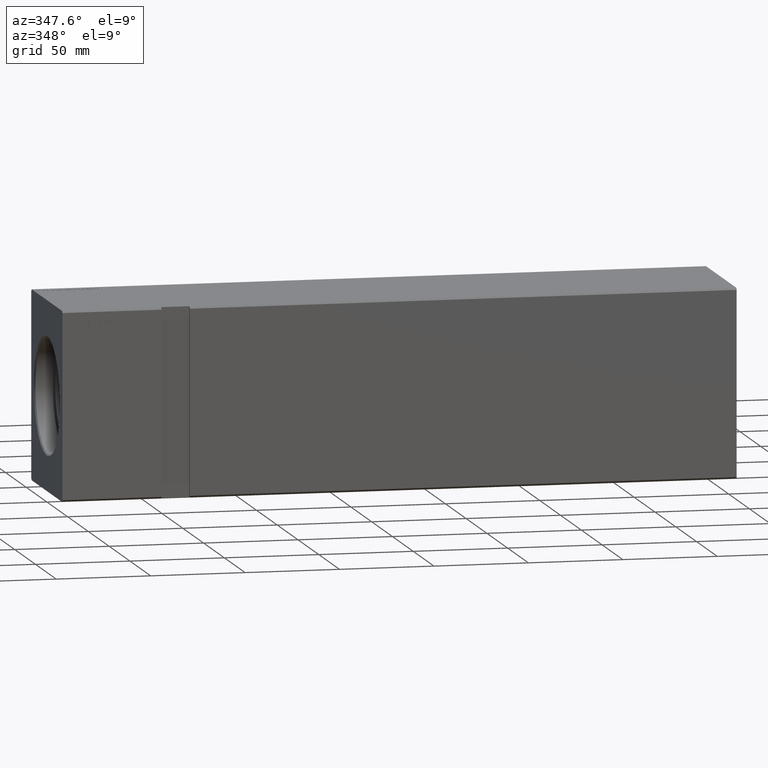
[diagram: clean part render]
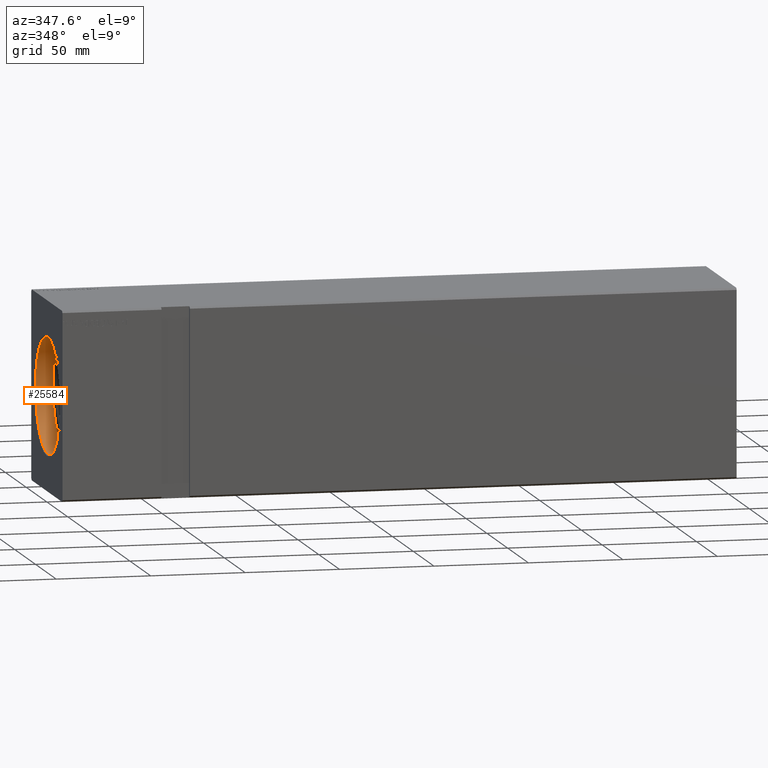
[diagram: same view with one face highlighted and labeled with its STEP entity id]
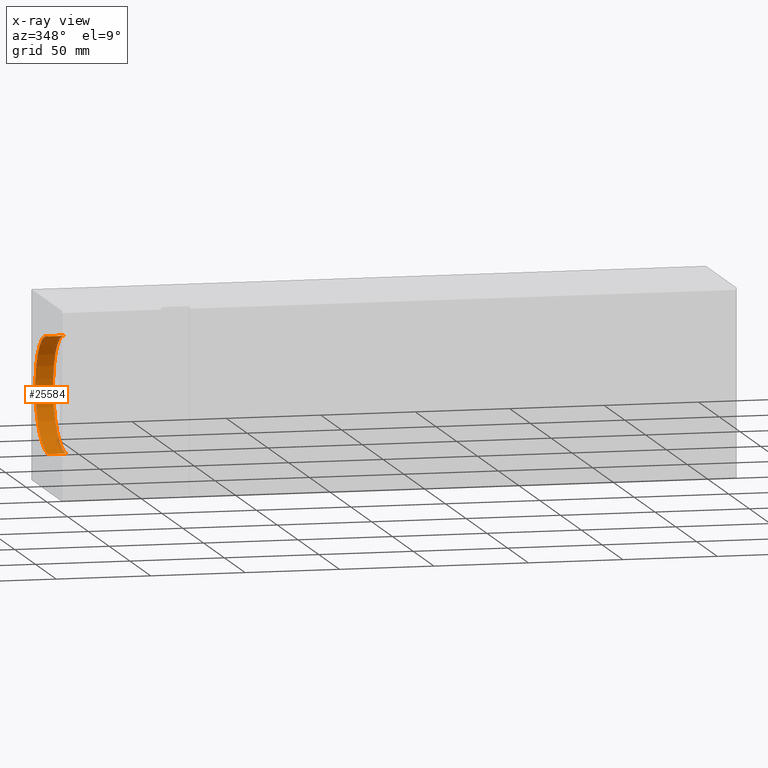
[diagram: x-ray of the same camera — body ghosted, the highlighted face saturated]
A machine part, auxiliary view. The second image highlights one B-rep face of the part: STEP entity #25584.
The next image is the same camera in x-ray: the body ghosted, the highlighted face saturated — about 3% of this face is hidden behind the body in this view.
In plain terms, the highlighted cylindrical surface (partial cylindrical patch) has radius 30.75 mm, axis along (-1, -0, -0).
Its self-contained STEP definition (entity closure, byte-faithful):
#2380 = DIRECTION ( 'NONE',  ( 0.000000000000000000, 0.000000000000000000, -1.000000000000000000 ) ) ;
#2854 = DIRECTION ( 'NONE',  ( -1.000000000000000000, 0.000000000000000000, 0.000000000000000000 ) ) ;
#4718 = ORIENTED_EDGE ( 'NONE', *, *, #13412, .T. ) ;
#5097 = VERTEX_POINT ( 'NONE', #20823 ) ;
#5549 = CIRCLE ( 'NONE', #39897, 30.75000000000000355 ) ;
#5813 = CARTESIAN_POINT ( 'NONE',  ( 10.00000000000000000, 0.000000000000000000, 0.000000000000000000 ) ) ;
#5982 = CARTESIAN_POINT ( 'NONE',  ( 0.6999999999999124700, 0.000000000000000000, 0.000000000000000000 ) ) ;
#6412 = EDGE_LOOP ( 'NONE', ( #8678, #39944, #4718, #19699 ) ) ;
#7177 = EDGE_CURVE ( 'NONE', #26124, #23797, #24779, .T. ) ;
#8678 = ORIENTED_EDGE ( 'NONE', *, *, #7177, .F. ) ;
#11588 = CARTESIAN_POINT ( 'NONE',  ( 10.00000000000000000, 0.000000000000000000, 30.75000000000000355 ) ) ;
#12447 = FACE_OUTER_BOUND ( 'NONE', #6412, .T. ) ;
#13412 = EDGE_CURVE ( 'NONE', #18062, #5097, #40484, .T. ) ;
#13473 = AXIS2_PLACEMENT_3D ( 'NONE', #5813, #2854, #31540 ) ;
#15363 = EDGE_CURVE ( 'NONE', #18062, #26124, #24893, .T. ) ;
#18062 = VERTEX_POINT ( 'NONE', #27168 ) ;
#19399 = DIRECTION ( 'NONE',  ( 0.000000000000000000, 0.000000000000000000, 1.000000000000000000 ) ) ;
#19699 = ORIENTED_EDGE ( 'NONE', *, *, #31136, .T. ) ;
#20026 = CYLINDRICAL_SURFACE ( 'NONE', #21697, 30.75000000000000355 ) ;
#20823 = CARTESIAN_POINT ( 'NONE',  ( 0.6999999999999124700, 0.000000000000000000, 30.75000000000000355 ) ) ;
#21697 = AXIS2_PLACEMENT_3D ( 'NONE', #35434, #26145, #19399 ) ;
#23797 = VERTEX_POINT ( 'NONE', #26595 ) ;
#24186 = VECTOR ( 'NONE', #24442, 1000.000000000000000 ) ;
#24442 = DIRECTION ( 'NONE',  ( -1.000000000000000000, -0.000000000000000000, -0.000000000000000000 ) ) ;
#24779 = LINE ( 'NONE', #35336, #28088 ) ;
#24893 = CIRCLE ( 'NONE', #13473, 30.75000000000000355 ) ;
#25584 = ADVANCED_FACE ( 'NONE', ( #12447 ), #20026, .F. ) ;
#26124 = VERTEX_POINT ( 'NONE', #32369 ) ;
#26145 = DIRECTION ( 'NONE',  ( -1.000000000000000000, -0.000000000000000000, -0.000000000000000000 ) ) ;
#26595 = CARTESIAN_POINT ( 'NONE',  ( 0.6999999999999124700, 3.765788907378111328E-15, -30.75000000000000355 ) ) ;
#27168 = CARTESIAN_POINT ( 'NONE',  ( 10.00000000000000000, 0.000000000000000000, 30.75000000000000355 ) ) ;
#28088 = VECTOR ( 'NONE', #41039, 1000.000000000000000 ) ;
#28769 = DIRECTION ( 'NONE',  ( -1.000000000000000000, 0.000000000000000000, 0.000000000000000000 ) ) ;
#31136 = EDGE_CURVE ( 'NONE', #5097, #23797, #5549, .T. ) ;
#31540 = DIRECTION ( 'NONE',  ( 0.000000000000000000, 0.000000000000000000, 1.000000000000000000 ) ) ;
#32369 = CARTESIAN_POINT ( 'NONE',  ( 10.00000000000000000, 3.765788907378111328E-15, -30.75000000000000355 ) ) ;
#35336 = CARTESIAN_POINT ( 'NONE',  ( 10.00000000000000000, 3.765788907378111328E-15, -30.75000000000000355 ) ) ;
#35434 = CARTESIAN_POINT ( 'NONE',  ( 10.00000000000000000, 0.000000000000000000, 0.000000000000000000 ) ) ;
#39897 = AXIS2_PLACEMENT_3D ( 'NONE', #5982, #28769, #2380 ) ;
#39944 = ORIENTED_EDGE ( 'NONE', *, *, #15363, .F. ) ;
#40484 = LINE ( 'NONE', #11588, #24186 ) ;
#41039 = DIRECTION ( 'NONE',  ( -1.000000000000000000, -0.000000000000000000, -0.000000000000000000 ) ) ;